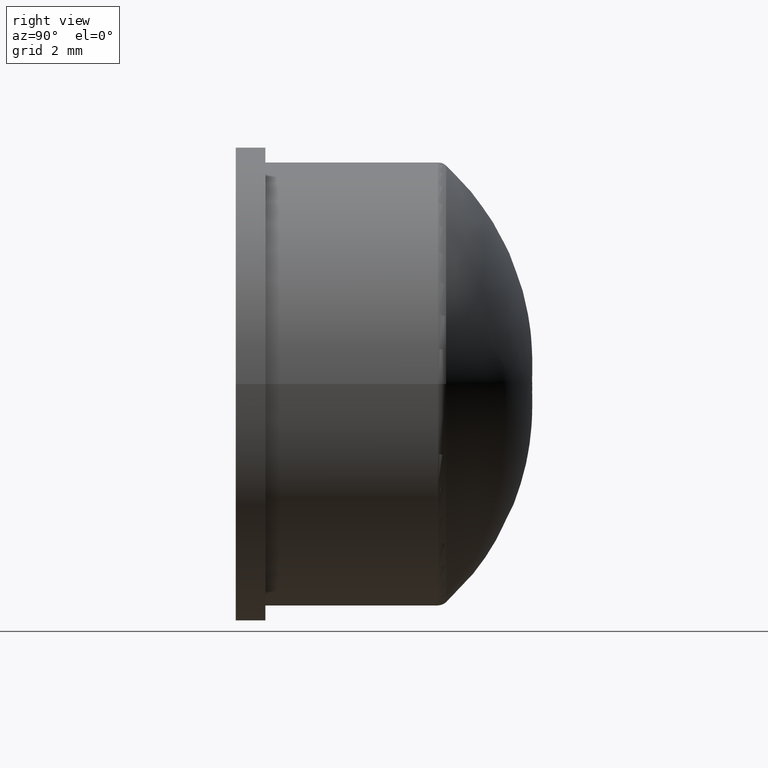
[diagram: clean part render]
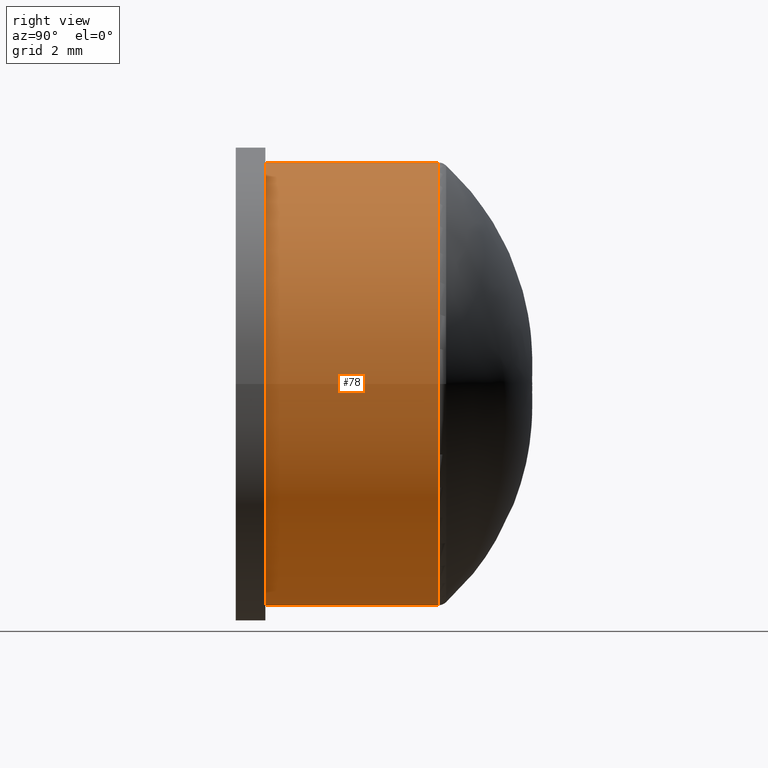
[diagram: same view with one face highlighted and labeled with its STEP entity id]
A machine part, right view. The second image highlights one B-rep face of the part: STEP entity #78.
In plain terms, the highlighted cylindrical surface (bore or boss wall) has radius 3.75 mm, axis along (0, -1, 0).
Its self-contained STEP definition (entity closure, byte-faithful):
#17=CYLINDRICAL_SURFACE('',#88,3.75);
#22=FACE_BOUND('',#35,.T.);
#27=FACE_OUTER_BOUND('',#34,.T.);
#34=EDGE_LOOP('',(#68));
#35=EDGE_LOOP('',(#69));
#43=CIRCLE('',#87,3.75);
#44=CIRCLE('',#89,3.75);
#49=VERTEX_POINT('',#125);
#51=VERTEX_POINT('',#159);
#56=EDGE_CURVE('',#49,#49,#43,.T.);
#58=EDGE_CURVE('',#51,#51,#44,.T.);
#68=ORIENTED_EDGE('',*,*,#58,.F.);
#69=ORIENTED_EDGE('',*,*,#56,.F.);
#78=ADVANCED_FACE('',(#27,#22),#17,.T.);
#87=AXIS2_PLACEMENT_3D('',#126,#103,#104);
#88=AXIS2_PLACEMENT_3D('',#158,#105,#106);
#89=AXIS2_PLACEMENT_3D('',#160,#107,#108);
#103=DIRECTION('center_axis',(-3.33066907387547E-16,1.,0.));
#104=DIRECTION('ref_axis',(-1.,-3.33066907387547E-16,1.22464679914735E-16));
#105=DIRECTION('center_axis',(3.33066907387547E-16,-1.,0.));
#106=DIRECTION('ref_axis',(1.,6.39024356686511E-16,0.));
#107=DIRECTION('center_axis',(3.33066907387547E-16,-1.,0.));
#108=DIRECTION('ref_axis',(1.,3.33066907387547E-16,0.));
#125=CARTESIAN_POINT('',(3.75,3.42316935359135,-9.18485099360515E-16));
#126=CARTESIAN_POINT('Origin',(-1.1401444300645E-15,3.42316935359135,0.));
#158=CARTESIAN_POINT('Origin',(-6.66133814775094E-16,2.,0.));
#159=CARTESIAN_POINT('',(3.75,0.5,0.));
#160=CARTESIAN_POINT('Origin',(-1.66533453693773E-16,0.499999999999999,
0.));